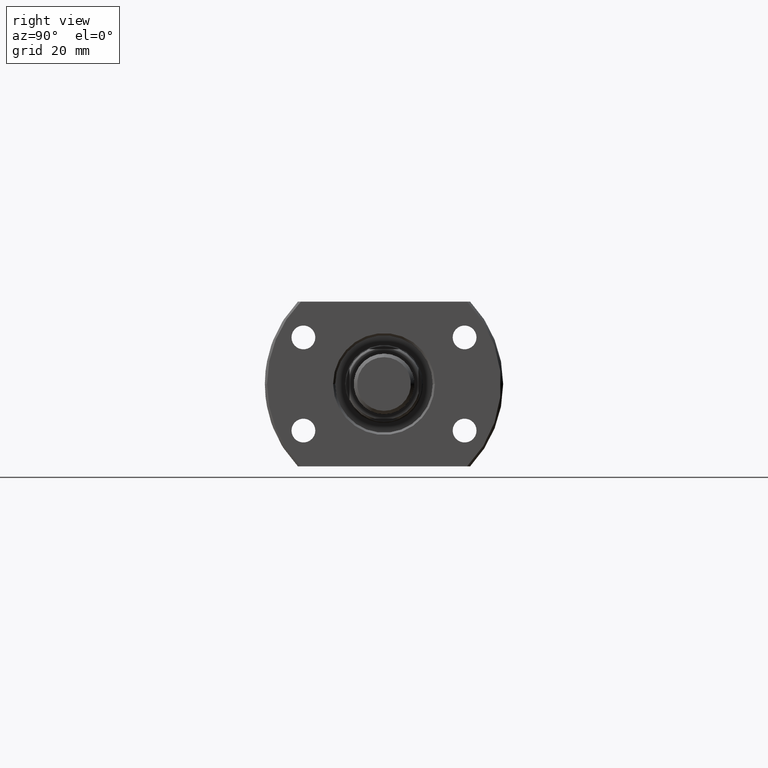
[diagram: clean part render]
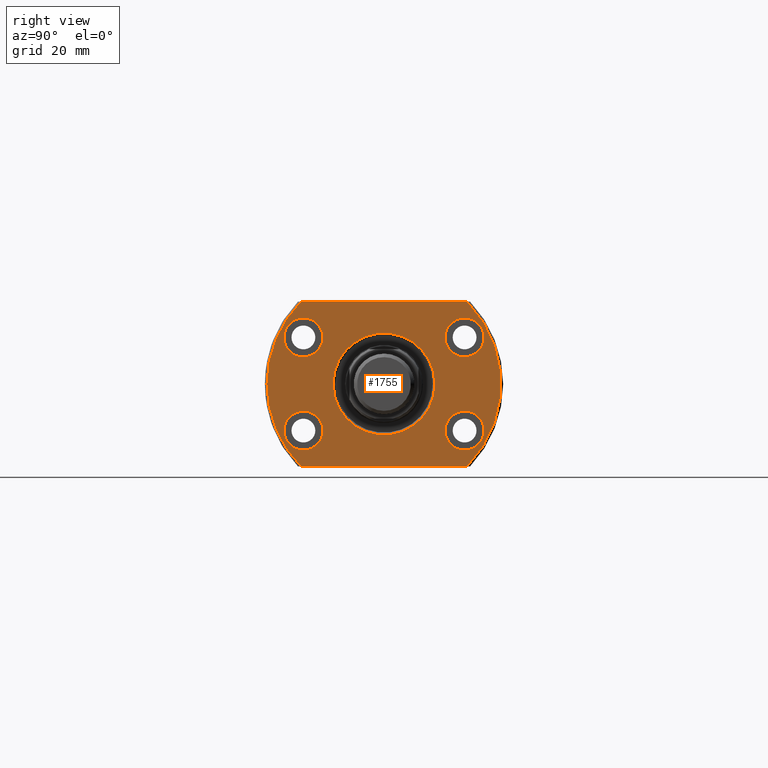
[diagram: same view with one face highlighted and labeled with its STEP entity id]
A machine part, right view. The second image highlights one B-rep face of the part: STEP entity #1755.
In plain terms, the highlighted planar face has unit normal (-1, -0, 0).
Its self-contained STEP definition (entity closure, byte-faithful):
#10 = VERTEX_POINT ( 'NONE', #2860 ) ;
#90 = DIRECTION ( 'NONE',  ( 1.000000000000000000, -2.883293662278287419E-14, -3.155443620884046521E-30 ) ) ;
#97 = CIRCLE ( 'NONE', #1989, 4.500000000000000888 ) ;
#136 = DIRECTION ( 'NONE',  ( 1.000000000000000000, -2.883293662278287419E-14, -3.155443620884046521E-30 ) ) ;
#153 = VERTEX_POINT ( 'NONE', #3008 ) ;
#188 = CARTESIAN_POINT ( 'NONE',  ( 26.50000000000054001, 18.59999999999923403, -10.75000000000000000 ) ) ;
#196 = FACE_BOUND ( 'NONE', #1299, .T. ) ;
#201 = LINE ( 'NONE', #1344, #2597 ) ;
#218 = CIRCLE ( 'NONE', #3380, 4.500000000000000888 ) ;
#230 = EDGE_LOOP ( 'NONE', ( #1178, #2243 ) ) ;
#246 = ORIENTED_EDGE ( 'NONE', *, *, #2852, .F. ) ;
#316 = CARTESIAN_POINT ( 'NONE',  ( 26.50000000000000355, -11.75000000000071054, 1.438959988998140752E-15 ) ) ;
#342 = AXIS2_PLACEMENT_3D ( 'NONE', #1962, #1320, #2441 ) ;
#381 = AXIS2_PLACEMENT_3D ( 'NONE', #2480, #757, #1597 ) ;
#395 = AXIS2_PLACEMENT_3D ( 'NONE', #516, #2786, #1375 ) ;
#425 = CARTESIAN_POINT ( 'NONE',  ( 26.50000000000000355, -27.00000000000000000, 0.000000000000000000 ) ) ;
#467 = FACE_BOUND ( 'NONE', #2566, .T. ) ;
#468 = VERTEX_POINT ( 'NONE', #2615 ) ;
#475 = DIRECTION ( 'NONE',  ( 1.000000000000000000, -2.883293662278287419E-14, -3.155443620884046521E-30 ) ) ;
#516 = CARTESIAN_POINT ( 'NONE',  ( 26.49999999999946354, -18.60000000000076881, -10.75000000000000000 ) ) ;
#578 = AXIS2_PLACEMENT_3D ( 'NONE', #892, #90, #3466 ) ;
#652 = CARTESIAN_POINT ( 'NONE',  ( 26.50000000000041211, 14.09999999999923403, 10.75000000000000000 ) ) ;
#663 = CARTESIAN_POINT ( 'NONE',  ( 26.50000000000000355, -7.069515144664183387E-13, 0.000000000000000000 ) ) ;
#665 = EDGE_CURVE ( 'NONE', #3625, #3020, #2829, .T. ) ;
#702 = DIRECTION ( 'NONE',  ( 0.000000000000000000, 1.000000000000000000, 0.000000000000000000 ) ) ;
#714 = EDGE_CURVE ( 'NONE', #1853, #1363, #922, .T. ) ;
#725 = ORIENTED_EDGE ( 'NONE', *, *, #2571, .F. ) ;
#728 = EDGE_CURVE ( 'NONE', #10, #3683, #97, .T. ) ;
#756 = CARTESIAN_POINT ( 'NONE',  ( 26.50000000000041211, 14.09999999999923403, -10.75000000000000000 ) ) ;
#757 = DIRECTION ( 'NONE',  ( 1.000000000000000000, 9.242617352055502386E-18, -0.000000000000000000 ) ) ;
#762 = FACE_OUTER_BOUND ( 'NONE', #1546, .T. ) ;
#778 = DIRECTION ( 'NONE',  ( 9.242617352055502386E-18, -1.000000000000000000, 0.000000000000000000 ) ) ;
#878 = CIRCLE ( 'NONE', #342, 11.74999999999932498 ) ;
#879 = DIRECTION ( 'NONE',  ( 2.852656382717415620E-14, 1.000000000000000000, 0.000000000000000000 ) ) ;
#884 = DIRECTION ( 'NONE',  ( 2.852656382717415620E-14, 1.000000000000000000, 0.000000000000000000 ) ) ;
#892 = CARTESIAN_POINT ( 'NONE',  ( 26.49999999999946354, -18.60000000000076881, -10.75000000000000000 ) ) ;
#895 = CARTESIAN_POINT ( 'NONE',  ( 26.50000000000066791, 23.09999999999923403, 10.75000000000000000 ) ) ;
#922 = CIRCLE ( 'NONE', #1100, 4.500000000000000888 ) ;
#924 = ORIENTED_EDGE ( 'NONE', *, *, #728, .F. ) ;
#969 = CARTESIAN_POINT ( 'NONE',  ( 26.50000000000000355, 2.449293598294708386E-16, 0.000000000000000000 ) ) ;
#971 = CIRCLE ( 'NONE', #381, 27.00000000000000000 ) ;
#1000 = FACE_BOUND ( 'NONE', #2113, .T. ) ;
#1001 = VERTEX_POINT ( 'NONE', #1700 ) ;
#1064 = VERTEX_POINT ( 'NONE', #2139 ) ;
#1075 = DIRECTION ( 'NONE',  ( -9.242617352055502386E-18, 1.000000000000000000, -0.000000000000000000 ) ) ;
#1078 = CARTESIAN_POINT ( 'NONE',  ( 26.49999999999946354, -18.60000000000076881, 10.75000000000000000 ) ) ;
#1100 = AXIS2_PLACEMENT_3D ( 'NONE', #1078, #475, #3304 ) ;
#1151 = CARTESIAN_POINT ( 'NONE',  ( 26.50000000000000355, 2.449293598294708386E-16, 0.000000000000000000 ) ) ;
#1152 = CARTESIAN_POINT ( 'NONE',  ( 26.50000000000054001, 18.59999999999923403, 10.75000000000000000 ) ) ;
#1178 = ORIENTED_EDGE ( 'NONE', *, *, #665, .T. ) ;
#1223 = AXIS2_PLACEMENT_3D ( 'NONE', #1560, #136, #884 ) ;
#1231 = AXIS2_PLACEMENT_3D ( 'NONE', #1151, #2277, #3438 ) ;
#1296 = CIRCLE ( 'NONE', #3620, 27.00000000000000000 ) ;
#1297 = DIRECTION ( 'NONE',  ( 1.000000000000000000, 9.242617352055502386E-18, -0.000000000000000000 ) ) ;
#1299 = EDGE_LOOP ( 'NONE', ( #725, #3087 ) ) ;
#1320 = DIRECTION ( 'NONE',  ( -1.000000000000000000, -9.242617352055502386E-18, 0.000000000000000000 ) ) ;
#1344 = CARTESIAN_POINT ( 'NONE',  ( 26.50000000000000355, -27.00000000000000000, -19.00000000000001066 ) ) ;
#1363 = VERTEX_POINT ( 'NONE', #3366 ) ;
#1375 = DIRECTION ( 'NONE',  ( 2.852656382717415620E-14, 1.000000000000000000, 0.000000000000000000 ) ) ;
#1417 = EDGE_CURVE ( 'NONE', #3670, #468, #971, .T. ) ;
#1475 = CIRCLE ( 'NONE', #1997, 4.500000000000000888 ) ;
#1546 = EDGE_LOOP ( 'NONE', ( #2253, #1908, #2029, #1866, #2992 ) ) ;
#1560 = CARTESIAN_POINT ( 'NONE',  ( 26.50000000000054001, 18.59999999999923403, -10.75000000000000000 ) ) ;
#1597 = DIRECTION ( 'NONE',  ( 0.000000000000000000, 1.000000000000000000, 0.000000000000000000 ) ) ;
#1602 = LINE ( 'NONE', #3574, #2539 ) ;
#1606 = DIRECTION ( 'NONE',  ( -1.000000000000000000, -9.242617352055502386E-18, 0.000000000000000000 ) ) ;
#1612 = DIRECTION ( 'NONE',  ( 2.852656382717415620E-14, 1.000000000000000000, 0.000000000000000000 ) ) ;
#1643 = ORIENTED_EDGE ( 'NONE', *, *, #1999, .F. ) ;
#1695 = CARTESIAN_POINT ( 'NONE',  ( 26.49999999999946354, -18.60000000000076881, 10.75000000000000000 ) ) ;
#1700 = CARTESIAN_POINT ( 'NONE',  ( 26.49999999999933564, -23.10000000000076881, -10.75000000000000000 ) ) ;
#1702 = CIRCLE ( 'NONE', #578, 4.500000000000000888 ) ;
#1735 = CARTESIAN_POINT ( 'NONE',  ( 26.50000000000054001, 18.59999999999923403, 10.75000000000000000 ) ) ;
#1755 = ADVANCED_FACE ( 'NONE', ( #2181, #196, #467, #1000, #3336, #762 ), #2123, .F. ) ;
#1794 = DIRECTION ( 'NONE',  ( -1.000000000000000000, -9.242617352055502386E-18, 0.000000000000000000 ) ) ;
#1814 = AXIS2_PLACEMENT_3D ( 'NONE', #663, #1794, #2927 ) ;
#1853 = VERTEX_POINT ( 'NONE', #3376 ) ;
#1866 = ORIENTED_EDGE ( 'NONE', *, *, #2779, .T. ) ;
#1876 = CIRCLE ( 'NONE', #2350, 4.500000000000000888 ) ;
#1878 = CIRCLE ( 'NONE', #1231, 27.00000000000000000 ) ;
#1908 = ORIENTED_EDGE ( 'NONE', *, *, #1417, .T. ) ;
#1962 = CARTESIAN_POINT ( 'NONE',  ( 26.50000000000000355, -7.069515144664183387E-13, 0.000000000000000000 ) ) ;
#1966 = DIRECTION ( 'NONE',  ( 2.852656382717415620E-14, 1.000000000000000000, 0.000000000000000000 ) ) ;
#1989 = AXIS2_PLACEMENT_3D ( 'NONE', #188, #2780, #1612 ) ;
#1997 = AXIS2_PLACEMENT_3D ( 'NONE', #1695, #3339, #1966 ) ;
#1999 = EDGE_CURVE ( 'NONE', #2182, #1001, #1702, .T. ) ;
#2029 = ORIENTED_EDGE ( 'NONE', *, *, #3629, .T. ) ;
#2113 = EDGE_LOOP ( 'NONE', ( #1643, #3019 ) ) ;
#2123 = PLANE ( 'NONE',  #2828 ) ;
#2138 = DIRECTION ( 'NONE',  ( -0.000000000000000000, 1.000000000000000000, 0.000000000000000000 ) ) ;
#2139 = CARTESIAN_POINT ( 'NONE',  ( 26.50000000000000355, -19.18332609325086580, -19.00000000000001066 ) ) ;
#2181 = FACE_BOUND ( 'NONE', #230, .T. ) ;
#2182 = VERTEX_POINT ( 'NONE', #2690 ) ;
#2243 = ORIENTED_EDGE ( 'NONE', *, *, #3348, .T. ) ;
#2253 = ORIENTED_EDGE ( 'NONE', *, *, #3187, .F. ) ;
#2277 = DIRECTION ( 'NONE',  ( 1.000000000000000000, 9.242617352055502386E-18, -0.000000000000000000 ) ) ;
#2289 = EDGE_CURVE ( 'NONE', #3683, #10, #2347, .T. ) ;
#2347 = CIRCLE ( 'NONE', #1223, 4.500000000000000888 ) ;
#2350 = AXIS2_PLACEMENT_3D ( 'NONE', #1152, #3131, #879 ) ;
#2426 = VERTEX_POINT ( 'NONE', #3347 ) ;
#2429 = EDGE_CURVE ( 'NONE', #1001, #2182, #3068, .T. ) ;
#2441 = DIRECTION ( 'NONE',  ( 0.000000000000000000, -1.000000000000000000, 0.000000000000000000 ) ) ;
#2480 = CARTESIAN_POINT ( 'NONE',  ( 26.50000000000000355, 2.449293598294708386E-16, 0.000000000000000000 ) ) ;
#2539 = VECTOR ( 'NONE', #2138, 1000.000000000000000 ) ;
#2566 = EDGE_LOOP ( 'NONE', ( #2669, #246 ) ) ;
#2571 = EDGE_CURVE ( 'NONE', #2940, #3471, #1876, .T. ) ;
#2597 = VECTOR ( 'NONE', #1075, 1000.000000000000000 ) ;
#2610 = DIRECTION ( 'NONE',  ( 1.000000000000000000, -2.886466111666351885E-14, 0.000000000000000000 ) ) ;
#2615 = CARTESIAN_POINT ( 'NONE',  ( 26.50000000000000355, -27.00000000000000355, 0.000000000000000000 ) ) ;
#2644 = ORIENTED_EDGE ( 'NONE', *, *, #2289, .F. ) ;
#2669 = ORIENTED_EDGE ( 'NONE', *, *, #714, .F. ) ;
#2690 = CARTESIAN_POINT ( 'NONE',  ( 26.49999999999959499, -14.10000000000076881, -10.75000000000000000 ) ) ;
#2779 = EDGE_CURVE ( 'NONE', #1064, #153, #201, .T. ) ;
#2780 = DIRECTION ( 'NONE',  ( 1.000000000000000000, -2.883293662278287419E-14, -3.155443620884046521E-30 ) ) ;
#2786 = DIRECTION ( 'NONE',  ( 1.000000000000000000, -2.883293662278287419E-14, -3.155443620884046521E-30 ) ) ;
#2828 = AXIS2_PLACEMENT_3D ( 'NONE', #425, #1606, #778 ) ;
#2829 = CIRCLE ( 'NONE', #1814, 11.74999999999932498 ) ;
#2852 = EDGE_CURVE ( 'NONE', #1363, #1853, #1475, .T. ) ;
#2860 = CARTESIAN_POINT ( 'NONE',  ( 26.50000000000066791, 23.09999999999923403, -10.75000000000000000 ) ) ;
#2927 = DIRECTION ( 'NONE',  ( 0.000000000000000000, -1.000000000000000000, 0.000000000000000000 ) ) ;
#2940 = VERTEX_POINT ( 'NONE', #895 ) ;
#2953 = EDGE_CURVE ( 'NONE', #3471, #2940, #218, .T. ) ;
#2990 = CARTESIAN_POINT ( 'NONE',  ( 26.50000000000000355, 11.74999999999861622, 0.000000000000000000 ) ) ;
#2992 = ORIENTED_EDGE ( 'NONE', *, *, #3029, .T. ) ;
#3008 = CARTESIAN_POINT ( 'NONE',  ( 26.50000000000000355, 19.18332609325086580, -19.00000000000001066 ) ) ;
#3019 = ORIENTED_EDGE ( 'NONE', *, *, #2429, .F. ) ;
#3020 = VERTEX_POINT ( 'NONE', #316 ) ;
#3029 = EDGE_CURVE ( 'NONE', #153, #2426, #1878, .T. ) ;
#3068 = CIRCLE ( 'NONE', #395, 4.500000000000000888 ) ;
#3087 = ORIENTED_EDGE ( 'NONE', *, *, #2953, .F. ) ;
#3129 = DIRECTION ( 'NONE',  ( 2.852656382717415620E-14, 1.000000000000000000, 0.000000000000000000 ) ) ;
#3131 = DIRECTION ( 'NONE',  ( 1.000000000000000000, -2.886466111666351885E-14, 0.000000000000000000 ) ) ;
#3152 = EDGE_LOOP ( 'NONE', ( #924, #2644 ) ) ;
#3187 = EDGE_CURVE ( 'NONE', #3670, #2426, #1602, .T. ) ;
#3304 = DIRECTION ( 'NONE',  ( 2.852656382717415620E-14, 1.000000000000000000, 0.000000000000000000 ) ) ;
#3309 = CARTESIAN_POINT ( 'NONE',  ( 26.50000000000000355, -19.18332609325086224, 19.00000000000000711 ) ) ;
#3336 = FACE_BOUND ( 'NONE', #3152, .T. ) ;
#3339 = DIRECTION ( 'NONE',  ( 1.000000000000000000, -2.883293662278287419E-14, -3.155443620884046521E-30 ) ) ;
#3347 = CARTESIAN_POINT ( 'NONE',  ( 26.50000000000000355, 19.18332609325086935, 19.00000000000000711 ) ) ;
#3348 = EDGE_CURVE ( 'NONE', #3020, #3625, #878, .T. ) ;
#3366 = CARTESIAN_POINT ( 'NONE',  ( 26.49999999999933564, -23.10000000000076881, 10.75000000000000000 ) ) ;
#3376 = CARTESIAN_POINT ( 'NONE',  ( 26.49999999999959499, -14.10000000000076881, 10.75000000000000000 ) ) ;
#3380 = AXIS2_PLACEMENT_3D ( 'NONE', #1735, #2610, #3129 ) ;
#3438 = DIRECTION ( 'NONE',  ( 0.000000000000000000, 1.000000000000000000, 0.000000000000000000 ) ) ;
#3466 = DIRECTION ( 'NONE',  ( 2.852656382717415620E-14, 1.000000000000000000, 0.000000000000000000 ) ) ;
#3471 = VERTEX_POINT ( 'NONE', #652 ) ;
#3574 = CARTESIAN_POINT ( 'NONE',  ( 26.50000000000000355, 19.88089535207168623, 19.00000000000001066 ) ) ;
#3620 = AXIS2_PLACEMENT_3D ( 'NONE', #969, #1297, #702 ) ;
#3625 = VERTEX_POINT ( 'NONE', #2990 ) ;
#3629 = EDGE_CURVE ( 'NONE', #468, #1064, #1296, .T. ) ;
#3670 = VERTEX_POINT ( 'NONE', #3309 ) ;
#3683 = VERTEX_POINT ( 'NONE', #756 ) ;